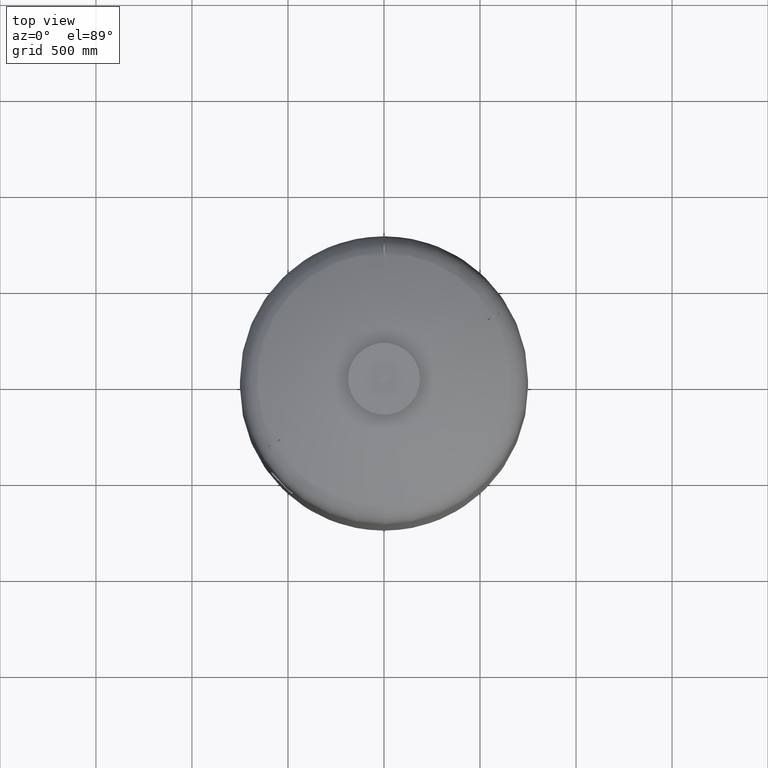
[diagram: clean part render]
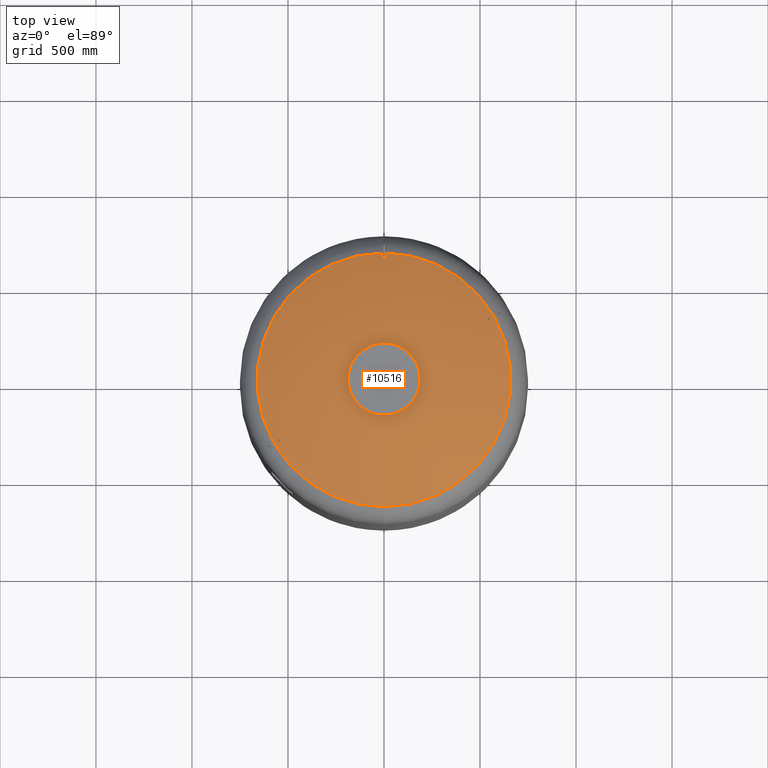
[diagram: same view with one face highlighted and labeled with its STEP entity id]
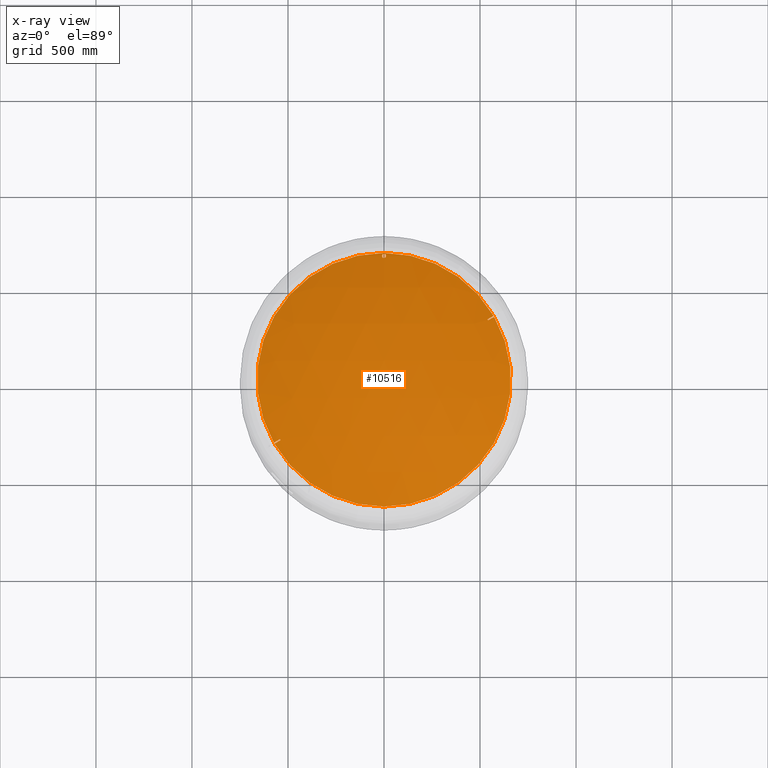
[diagram: x-ray of the same camera — body ghosted, the highlighted face saturated]
A machine part, top view. The second image highlights one B-rep face of the part: STEP entity #10516.
The next image is the same camera in x-ray: the body ghosted, the highlighted face saturated — about 0% of this face is hidden behind the body in this view.
In plain terms, the highlighted spherical surface has radius 1509 mm.
Its self-contained STEP definition (entity closure, byte-faithful):
#9780=CARTESIAN_POINT('',(2.782883E-014,-660.606666666666800,2822.716562866229200));
#9781=VERTEX_POINT('',#9780);
#9797=CARTESIAN_POINT('',(1.087271E-013,660.606666666666800,2822.716562866229200));
#9798=VERTEX_POINT('',#9797);
#9806=CARTESIAN_POINT('',(570.596255916202270,332.898003566943030,2822.716562866229200));
#9807=VERTEX_POINT('',#9806);
#9808=CARTESIAN_POINT('',(7.530601E-015,-2.797401E-014,2822.716562866229200));
#9809=DIRECTION('',(0.0,0.0,-1.0));
#9810=DIRECTION('',(1.0,0.0,0.0));
#9811=AXIS2_PLACEMENT_3D('',#9808,#9809,#9810);
#9812=CIRCLE('',#9811,660.606666666666800);
#9813=EDGE_CURVE('',#9798,#9807,#9812,.T.);
#9842=CARTESIAN_POINT('',(573.596255916202270,327.701851144236400,2822.716562866229200));
#9843=VERTEX_POINT('',#9842);
#9857=CARTESIAN_POINT('',(7.530601E-015,-2.797401E-014,2822.716562866229200));
#9858=DIRECTION('',(0.0,0.0,-1.0));
#9859=DIRECTION('',(1.0,0.0,0.0));
#9860=AXIS2_PLACEMENT_3D('',#9857,#9858,#9859);
#9861=CIRCLE('',#9860,660.606666666666800);
#9862=EDGE_CURVE('',#9843,#9781,#9861,.T.);
#9916=CARTESIAN_POINT('',(-1.897978E-015,655.650000000000090,2825.118860696149600));
#9917=VERTEX_POINT('',#9916);
#9933=CARTESIAN_POINT('',(-1.240563E-015,634.350000000000140,2835.189934778954900));
#9934=VERTEX_POINT('',#9933);
#9941=CARTESIAN_POINT('',(-1.897978E-015,655.650000000000090,2825.118860696149600));
#9942=CARTESIAN_POINT('',(0.665404330812075,655.650000000000090,2825.118860696149600));
#9943=CARTESIAN_POINT('',(1.351005238531910,655.586586472611200,2825.148956099280000));
#9944=CARTESIAN_POINT('',(2.709152380359530,655.322864024945490,2825.274102903181800));
#9945=CARTESIAN_POINT('',(3.381714256279836,655.122620744017920,2825.369122863290600));
#9946=CARTESIAN_POINT('',(4.665906970622906,654.598580857008300,2825.617749092760700));
#9947=CARTESIAN_POINT('',(5.278739801402161,654.274335051525900,2825.771567636845200));
#9948=CARTESIAN_POINT('',(6.407722563082133,653.533432843510700,2826.122965029964700));
#9949=CARTESIAN_POINT('',(6.923874650766102,653.116778685511690,2826.320541682071500));
#9950=CARTESIAN_POINT('',(7.889290439644320,652.188962456306400,2826.760401335867800));
#9951=CARTESIAN_POINT('',(8.360621428439794,651.637013011092450,2827.022009760501500));
#9952=CARTESIAN_POINT('',(9.184218306884119,650.440594312454890,2827.588884786357100));
#9953=CARTESIAN_POINT('',(9.536575262430031,649.796175836176530,2827.894126243167600));
#9954=CARTESIAN_POINT('',(10.099226215268940,648.457629366782610,2828.527921196685800));
#9955=CARTESIAN_POINT('',(10.309904511361037,647.762627273321300,2828.856887882093800));
#9956=CARTESIAN_POINT('',(10.585321999158966,646.370108996278190,2829.515766474685300));
#9957=CARTESIAN_POINT('',(10.650000000000000,645.672582847176160,2829.845682896962900));
#9958=CARTESIAN_POINT('',(10.650000000000000,644.327773783445990,2830.481531696811500));
#9959=CARTESIAN_POINT('',(10.585389715432822,643.630518005042630,2830.811092215923500));
#9960=CARTESIAN_POINT('',(10.310158197774065,642.238371078161090,2831.468852435417800));
#9961=CARTESIAN_POINT('',(10.099596713855746,641.543470358319950,2831.797056877939700));
#9962=CARTESIAN_POINT('',(9.537165322407807,640.205009979753980,2832.429000886638700));
#9963=CARTESIAN_POINT('',(9.184909130526176,639.560574217313730,2832.733154802825100));
#9964=CARTESIAN_POINT('',(8.361484811050532,638.364076526992110,2833.297699280516600));
#9965=CARTESIAN_POINT('',(7.890225855511259,637.812066143510040,2833.558066601965000));
#9966=CARTESIAN_POINT('',(6.924750618118365,636.883947430329950,2833.995733923613400));
#9967=CARTESIAN_POINT('',(6.408446699130911,636.467094997367670,2834.192258225785300));
#9968=CARTESIAN_POINT('',(5.279175018932195,635.725897994843080,2834.541632396409100));
#9969=CARTESIAN_POINT('',(4.666205770247577,635.401555709393960,2834.694482302683800));
#9970=CARTESIAN_POINT('',(3.381800145527401,634.877399673759780,2834.941469592940800));
#9971=CARTESIAN_POINT('',(2.709163715388115,634.677136677483300,2835.035819489551600));
#9972=CARTESIAN_POINT('',(1.350949437001924,634.413404190588380,2835.160067323583900));
#9973=CARTESIAN_POINT('',(0.665356121600540,634.350000000000140,2835.189934778954900));
#9974=CARTESIAN_POINT('',(-1.240563E-015,634.350000000000140,2835.189934778954900));
#9975=B_SPLINE_CURVE_WITH_KNOTS('',3,(#9941,#9942,#9943,#9944,#9945,#9946,#9947,#9948,#9949,#9950,#9951,#9952,#9953,#9954,#9955,#9956,#9957,#9958,#9959,#9960,#9961,#9962,#9963,#9964,#9965,#9966,#9967,#9968,#9969,#9970,#9971,#9972,#9973,#9974),.UNSPECIFIED.,.F.,.U.,(4,2,2,2,2,2,2,2,2,2,2,2,2,2,2,2,4),(0.0,1.996212992436229,3.992425984872458,5.988638977308687,7.984851969744916,10.216773795484329,12.448695621223742,14.680617446963154,16.912539272702567,19.143277643240921,21.374016013779276,23.604754384317630,25.835492754855984,27.831561119657607,29.827629484459230,31.823697849260853,33.819766214062476),.UNSPECIFIED.);
#9976=EDGE_CURVE('',#9917,#9934,#9975,.T.);
#9987=CARTESIAN_POINT('',(-1.240563E-015,634.350000000000140,2835.189934778954900));
#9988=CARTESIAN_POINT('',(-0.665356121600537,634.350000000000140,2835.189934778954900));
#9989=CARTESIAN_POINT('',(-1.350949437001913,634.413404190588380,2835.160067323583900));
#9990=CARTESIAN_POINT('',(-2.709163715388091,634.677136677483300,2835.035819489551600));
#9991=CARTESIAN_POINT('',(-3.381800145527372,634.877399673759780,2834.941469592940800));
#9992=CARTESIAN_POINT('',(-4.666205770247546,635.401555709393960,2834.694482302683800));
#9993=CARTESIAN_POINT('',(-5.279175018932203,635.725897994843080,2834.541632396409100));
#9994=CARTESIAN_POINT('',(-6.408446699130908,636.467094997367670,2834.192258225785700));
#9995=CARTESIAN_POINT('',(-6.924750618118371,636.883947430329950,2833.995733923613400));
#9996=CARTESIAN_POINT('',(-7.890225855511268,637.812066143510040,2833.558066601965000));
#9997=CARTESIAN_POINT('',(-8.361484811050458,638.364076526991990,2833.297699280516600));
#9998=CARTESIAN_POINT('',(-9.184909130526131,639.560574217313620,2832.733154802825100));
#9999=CARTESIAN_POINT('',(-9.537165322407807,640.205009979753980,2832.429000886638700));
#10000=CARTESIAN_POINT('',(-10.099596713855753,641.543470358319950,2831.797056877939700));
#10001=CARTESIAN_POINT('',(-10.310158197774072,642.238371078161090,2831.468852435417800));
#10002=CARTESIAN_POINT('',(-10.585389715432829,643.630518005042630,2830.811092215923500));
#10003=CARTESIAN_POINT('',(-10.650000000000004,644.327773783445990,2830.481531696811500));
#10004=CARTESIAN_POINT('',(-10.650000000000004,645.672582847176160,2829.845682896962900));
#10005=CARTESIAN_POINT('',(-10.585321999158971,646.370108996278190,2829.515766474685300));
#10006=CARTESIAN_POINT('',(-10.309904511361040,647.762627273321300,2828.856887882093800));
#10007=CARTESIAN_POINT('',(-10.099226215268944,648.457629366782610,2828.527921196685800));
#10008=CARTESIAN_POINT('',(-9.536575262430034,649.796175836176530,2827.894126243167600));
#10009=CARTESIAN_POINT('',(-9.184218306884123,650.440594312454890,2827.588884786357100));
#10010=CARTESIAN_POINT('',(-8.360621428439798,651.637013011092450,2827.022009760501500));
#10011=CARTESIAN_POINT('',(-7.889290439644324,652.188962456306400,2826.760401335867800));
#10012=CARTESIAN_POINT('',(-6.923874650766106,653.116778685511690,2826.320541682071500));
#10013=CARTESIAN_POINT('',(-6.407722563082133,653.533432843510700,2826.122965029964700));
#10014=CARTESIAN_POINT('',(-5.278739801402160,654.274335051525900,2825.771567636845200));
#10015=CARTESIAN_POINT('',(-4.665906970622908,654.598580857008300,2825.617749092760700));
#10016=CARTESIAN_POINT('',(-3.381714256279838,655.122620744017920,2825.369122863290600));
#10017=CARTESIAN_POINT('',(-2.709152380359532,655.322864024945490,2825.274102903181800));
#10018=CARTESIAN_POINT('',(-1.351005238531913,655.586586472611200,2825.148956099280000));
#10019=CARTESIAN_POINT('',(-0.665404330812078,655.650000000000090,2825.118860696149600));
#10020=CARTESIAN_POINT('',(-1.897978E-015,655.650000000000090,2825.118860696149600));
#10021=B_SPLINE_CURVE_WITH_KNOTS('',3,(#9987,#9988,#9989,#9990,#9991,#9992,#9993,#9994,#9995,#9996,#9997,#9998,#9999,#10000,#10001,#10002,#10003,#10004,#10005,#10006,#10007,#10008,#10009,#10010,#10011,#10012,#10013,#10014,#10015,#10016,#10017,#10018,#10019,#10020),.UNSPECIFIED.,.F.,.U.,(4,2,2,2,2,2,2,2,2,2,2,2,2,2,2,2,4),(33.819766214062476,35.815834578864084,37.811902943665700,39.807971308467316,41.804039673268932,44.034778043807307,46.265516414345683,48.496254784884059,50.726993155422434,52.958914981161847,55.190836806901260,57.422758632640672,59.654680458380085,61.650893450816312,63.647106443252540,65.643319435688767,67.639532428124994),.UNSPECIFIED.);
#10022=EDGE_CURVE('',#9934,#9917,#10021,.T.);
#10050=CARTESIAN_POINT('',(-570.596255916196580,-332.898003566952920,2822.716562866229700));
#10051=VERTEX_POINT('',#10050);
#10067=CARTESIAN_POINT('',(-539.004547741172360,-314.658522347942950,2839.879584180558100));
#10068=VERTEX_POINT('',#10067);
#10069=CARTESIAN_POINT('',(1.500000000005994,-2.598076211363742,1466.0));
#10070=DIRECTION('',(0.499999999999994,-0.866025403784442,0.0));
#10071=DIRECTION('',(0.0,0.0,1.0));
#10072=AXIS2_PLACEMENT_3D('',#10069,#10070,#10071);
#10073=CIRCLE('',#10072,1508.997017889697400);
#10074=EDGE_CURVE('',#10068,#10051,#10073,.T.);
#10117=CARTESIAN_POINT('',(-542.004547741172470,-309.462369925236320,2839.879584180558100));
#10118=VERTEX_POINT('',#10117);
#10119=CARTESIAN_POINT('',(-195.850324208316520,-113.074237402545550,1403.348481320245600));
#10120=DIRECTION('',(0.834590199910602,0.481850876581402,0.266981143436977));
#10121=DIRECTION('',(0.0,0.484652475916135,-0.874706795211036));
#10122=AXIS2_PLACEMENT_3D('',#10119,#10120,#10121);
#10123=CIRCLE('',#10122,1490.641692208577100);
#10124=EDGE_CURVE('',#10118,#10068,#10123,.T.);
#10202=CARTESIAN_POINT('',(-573.596255916196580,-327.701851144246290,2822.716562866229700));
#10203=VERTEX_POINT('',#10202);
#10226=CARTESIAN_POINT('',(-1.499999999993967,2.598076211342912,1466.0));
#10227=DIRECTION('',(-0.499999999999994,0.866025403784442,0.0));
#10228=DIRECTION('',(0.0,0.0,-1.0));
#10229=AXIS2_PLACEMENT_3D('',#10226,#10227,#10228);
#10230=CIRCLE('',#10229,1508.997017889697400);
#10231=EDGE_CURVE('',#10203,#10118,#10230,.T.);
#10258=CARTESIAN_POINT('',(7.530601E-015,-2.797401E-014,2822.716562866229200));
#10259=DIRECTION('',(0.0,0.0,-1.0));
#10260=DIRECTION('',(1.0,0.0,0.0));
#10261=AXIS2_PLACEMENT_3D('',#10258,#10259,#10260);
#10262=CIRCLE('',#10261,660.606666666666800);
#10263=EDGE_CURVE('',#9781,#10051,#10262,.T.);
#10268=CARTESIAN_POINT('',(7.530601E-015,-2.797401E-014,2822.716562866229200));
#10269=DIRECTION('',(0.0,0.0,-1.0));
#10270=DIRECTION('',(1.0,0.0,0.0));
#10271=AXIS2_PLACEMENT_3D('',#10268,#10269,#10270);
#10272=CIRCLE('',#10271,660.606666666666800);
#10273=EDGE_CURVE('',#10203,#9798,#10272,.T.);
#10293=CARTESIAN_POINT('',(539.004547741178380,314.658522347932720,2839.879584180558100));
#10294=VERTEX_POINT('',#10293);
#10295=CARTESIAN_POINT('',(-1.499999999993948,2.598076211342792,1466.0));
#10296=DIRECTION('',(-0.500000000000006,0.866025403784435,0.0));
#10297=DIRECTION('',(0.0,0.0,-1.0));
#10298=AXIS2_PLACEMENT_3D('',#10295,#10296,#10297);
#10299=CIRCLE('',#10298,1508.997017889697400);
#10300=EDGE_CURVE('',#10294,#9807,#10299,.T.);
#10343=CARTESIAN_POINT('',(542.004547741178380,309.462369925225970,2839.879584180558100));
#10344=VERTEX_POINT('',#10343);
#10345=CARTESIAN_POINT('',(195.850324208315390,113.074237402547780,1403.348481320245400));
#10346=DIRECTION('',(-0.834590199910595,-0.481850876581413,0.266981143436977));
#10347=DIRECTION('',(0.0,0.484652475916126,0.874706795211040));
#10348=AXIS2_PLACEMENT_3D('',#10345,#10346,#10347);
#10349=CIRCLE('',#10348,1490.641692208577100);
#10350=EDGE_CURVE('',#10344,#10294,#10349,.T.);
#10481=CARTESIAN_POINT('',(1.500000000006090,-2.598076211363818,1466.0));
#10482=DIRECTION('',(0.500000000000006,-0.866025403784435,0.0));
#10483=DIRECTION('',(0.0,0.0,1.0));
#10484=AXIS2_PLACEMENT_3D('',#10481,#10482,#10483);
#10485=CIRCLE('',#10484,1508.997017889697400);
#10486=EDGE_CURVE('',#9843,#10344,#10485,.T.);
#10495=CARTESIAN_POINT('',(1.607048E-013,-2.771988E-013,1466.0));
#10496=DIRECTION('',(0.0,-1.0,0.0));
#10497=DIRECTION('',(-1.0,0.0,0.0));
#10498=AXIS2_PLACEMENT_3D('',#10495,#10496,#10497);
#10499=SPHERICAL_SURFACE('',#10498,1509.0);
#10500=ORIENTED_EDGE('',*,*,#9976,.T.);
#10501=ORIENTED_EDGE('',*,*,#10022,.T.);
#10502=EDGE_LOOP('',(#10500,#10501));
#10503=FACE_OUTER_BOUND('',#10502,.T.);
#10504=ORIENTED_EDGE('',*,*,#10074,.T.);
#10505=ORIENTED_EDGE('',*,*,#10263,.F.);
#10506=ORIENTED_EDGE('',*,*,#9862,.F.);
#10507=ORIENTED_EDGE('',*,*,#10486,.T.);
#10508=ORIENTED_EDGE('',*,*,#10350,.T.);
#10509=ORIENTED_EDGE('',*,*,#10300,.T.);
#10510=ORIENTED_EDGE('',*,*,#9813,.F.);
#10511=ORIENTED_EDGE('',*,*,#10273,.F.);
#10512=ORIENTED_EDGE('',*,*,#10231,.T.);
#10513=ORIENTED_EDGE('',*,*,#10124,.T.);
#10514=EDGE_LOOP('',(#10504,#10505,#10506,#10507,#10508,#10509,#10510,#10511,#10512,#10513));
#10515=FACE_BOUND('',#10514,.T.);
#10516=ADVANCED_FACE('',(#10503,#10515),#10499,.T.);